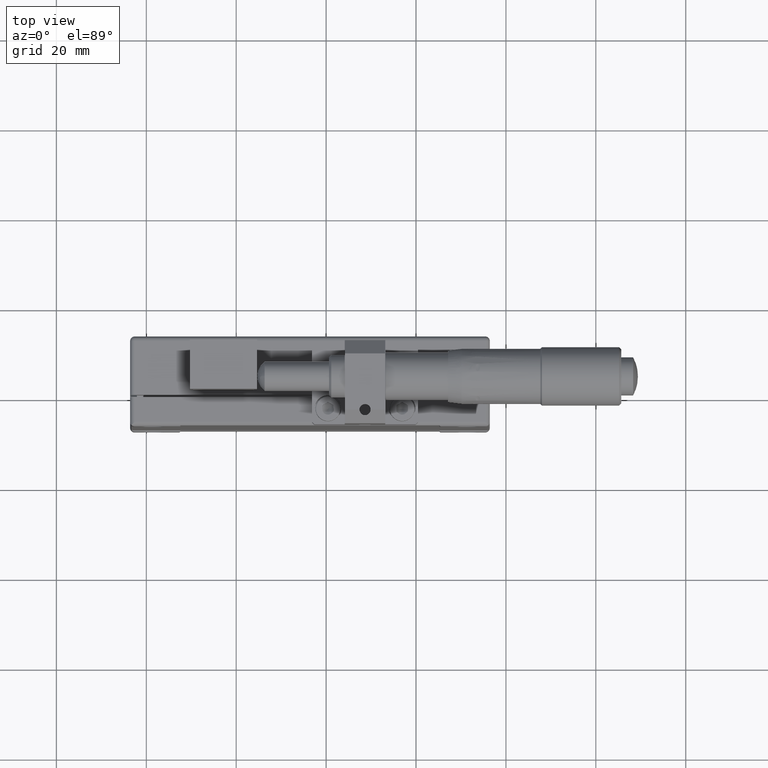
[diagram: clean part render]
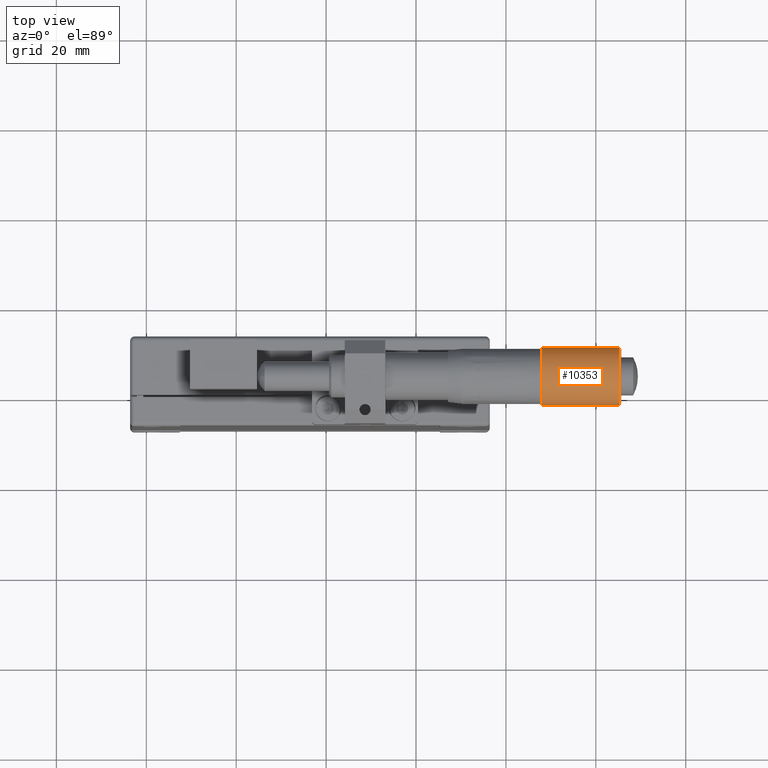
[diagram: same view with one face highlighted and labeled with its STEP entity id]
A machine part, top view. The second image highlights one B-rep face of the part: STEP entity #10353.
In plain terms, the highlighted cylindrical surface (edge-blend (fillet) strip) has radius 6.5 mm, axis along (-1, 0, -0).
Its self-contained STEP definition (entity closure, byte-faithful):
#280 = DIRECTION ( 'NONE',  ( 1.000000000000000000, 0.000000000000000000, 1.020425574104003999E-16 ) ) ;
#2374 = DIRECTION ( 'NONE',  ( -1.000000000000000000, 0.000000000000000000, -1.020425574104003999E-16 ) ) ;
#2610 = CARTESIAN_POINT ( 'NONE',  ( 48.02644876737939938, 9.944701483818199961, 57.00000000000000000 ) ) ;
#2682 = DIRECTION ( 'NONE',  ( 0.000000000000000000, 1.000000000000000000, 0.000000000000000000 ) ) ;
#3354 = CIRCLE ( 'NONE', #15498, 6.500000000000000000 ) ;
#5360 = LINE ( 'NONE', #17532, #5451 ) ;
#5383 = EDGE_CURVE ( 'NONE', #21158, #12341, #5360, .T. ) ;
#5451 = VECTOR ( 'NONE', #9958, 1000.000000000000000 ) ;
#5693 = ORIENTED_EDGE ( 'NONE', *, *, #5383, .F. ) ;
#6863 = VECTOR ( 'NONE', #21554, 1000.000000000000000 ) ;
#9334 = CIRCLE ( 'NONE', #10354, 6.499999999999999112 ) ;
#9692 = EDGE_CURVE ( 'NONE', #12091, #12341, #3354, .T. ) ;
#9958 = DIRECTION ( 'NONE',  ( -1.000000000000000000, 1.020425574104003999E-16, -1.020425574104003999E-16 ) ) ;
#10353 = ADVANCED_FACE ( 'NONE', ( #12020 ), #19437, .T. ) ;
#10354 = AXIS2_PLACEMENT_3D ( 'NONE', #25442, #18319, #20713 ) ;
#12020 = FACE_OUTER_BOUND ( 'NONE', #13742, .T. ) ;
#12091 = VERTEX_POINT ( 'NONE', #2610 ) ;
#12341 = VERTEX_POINT ( 'NONE', #13680 ) ;
#13680 = CARTESIAN_POINT ( 'NONE',  ( 48.02644876737939938, -3.055298516181804924, 57.00000000000000000 ) ) ;
#13742 = EDGE_LOOP ( 'NONE', ( #5693, #19553, #23840, #27564 ) ) ;
#15498 = AXIS2_PLACEMENT_3D ( 'NONE', #17056, #280, #19577 ) ;
#17056 = CARTESIAN_POINT ( 'NONE',  ( 48.02644876737939938, 3.444701483818194632, 57.00000000000000000 ) ) ;
#17532 = CARTESIAN_POINT ( 'NONE',  ( 15.29493842410649940, -3.055298516181804924, 57.00000000000000000 ) ) ;
#18081 = CARTESIAN_POINT ( 'NONE',  ( 65.15144876737929280, 9.944701483818191079, 57.00000000000000000 ) ) ;
#18319 = DIRECTION ( 'NONE',  ( -1.000000000000000000, 0.000000000000000000, -1.020425574104003999E-16 ) ) ;
#19437 = CYLINDRICAL_SURFACE ( 'NONE', #26004, 6.499999999999999112 ) ;
#19553 = ORIENTED_EDGE ( 'NONE', *, *, #26974, .T. ) ;
#19577 = DIRECTION ( 'NONE',  ( 0.000000000000000000, -1.000000000000000000, 0.000000000000000000 ) ) ;
#20713 = DIRECTION ( 'NONE',  ( 0.000000000000000000, 1.000000000000000000, 0.000000000000000000 ) ) ;
#21158 = VERTEX_POINT ( 'NONE', #29584 ) ;
#21554 = DIRECTION ( 'NONE',  ( -1.000000000000000000, 1.020425574104003999E-16, -1.020425574104003999E-16 ) ) ;
#21698 = CARTESIAN_POINT ( 'NONE',  ( 15.29493842410649940, 9.944701483818199961, 57.00000000000000000 ) ) ;
#23840 = ORIENTED_EDGE ( 'NONE', *, *, #30108, .T. ) ;
#25442 = CARTESIAN_POINT ( 'NONE',  ( 65.15144876737929280, 3.444701483818194632, 57.00000000000000000 ) ) ;
#26004 = AXIS2_PLACEMENT_3D ( 'NONE', #26095, #2374, #2682 ) ;
#26095 = CARTESIAN_POINT ( 'NONE',  ( 15.29493842410649940, 3.444701483818199961, 57.00000000000000000 ) ) ;
#26895 = LINE ( 'NONE', #21698, #6863 ) ;
#26974 = EDGE_CURVE ( 'NONE', #21158, #28915, #9334, .T. ) ;
#27564 = ORIENTED_EDGE ( 'NONE', *, *, #9692, .T. ) ;
#28915 = VERTEX_POINT ( 'NONE', #18081 ) ;
#29584 = CARTESIAN_POINT ( 'NONE',  ( 65.15144876737929280, -3.055298516181809809, 57.00000000000000000 ) ) ;
#30108 = EDGE_CURVE ( 'NONE', #28915, #12091, #26895, .T. ) ;